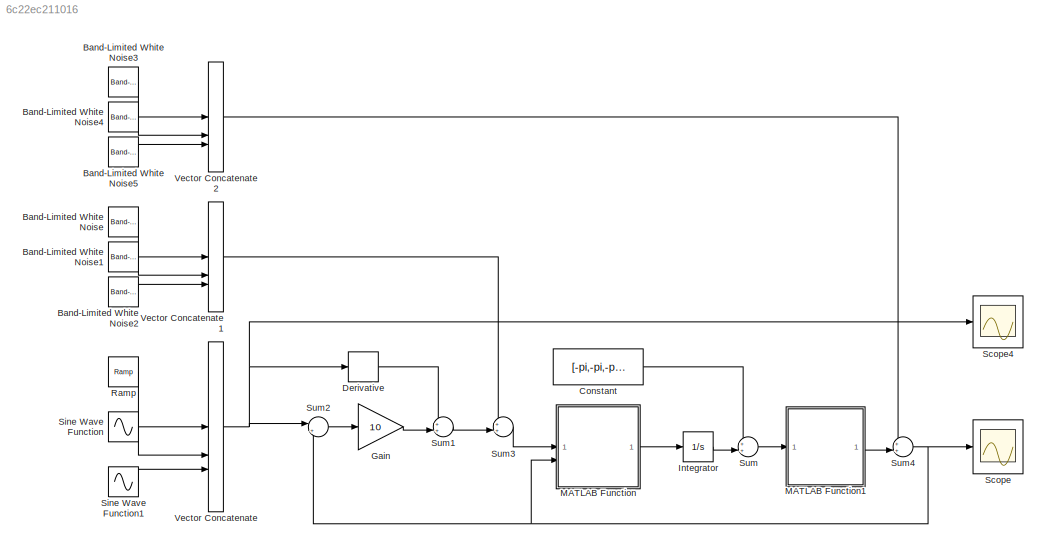
MODEL slx_6c22ec211016
KIND model
CONFIG AbsTol = auto
CONFIG EnableMultiTasking = off
CONFIG FixedStep = auto
CONFIG MaxStep = auto
CONFIG MinStep = auto
CONFIG RelTol = 1e-3
CONFIG SampleTimeConstraint = Unconstrained
CONFIG SolverName = VariableStepAuto
CONFIG StartTime = 0.0
CONFIG StopTime = 3
BLOCK [Reference] Band-Limited White Noise  REF=simulink/Sources/Band-Limited
White Noise
  SourceBlock = simulink/Sources/Band-Limited\nWhite Noise
  SourceType = Band-Limited White Noise.
BLOCK [Reference] Band-Limited White Noise1  REF=simulink/Sources/Band-Limited
White Noise
  SourceBlock = simulink/Sources/Band-Limited\nWhite Noise
  SourceType = Band-Limited White Noise.
BLOCK [Reference] Band-Limited White Noise2  REF=simulink/Sources/Band-Limited
White Noise
  SourceBlock = simulink/Sources/Band-Limited\nWhite Noise
  SourceType = Band-Limited White Noise.
BLOCK [Reference] Band-Limited White Noise3  REF=simulink/Sources/Band-Limited
White Noise
  SourceBlock = simulink/Sources/Band-Limited\nWhite Noise
  SourceType = Band-Limited White Noise.
BLOCK [Reference] Band-Limited White Noise4  REF=simulink/Sources/Band-Limited
White Noise
  SourceBlock = simulink/Sources/Band-Limited\nWhite Noise
  SourceType = Band-Limited White Noise.
BLOCK [Reference] Band-Limited White Noise5  REF=simulink/Sources/Band-Limited
White Noise
  SourceBlock = simulink/Sources/Band-Limited\nWhite Noise
  SourceType = Band-Limited White Noise.
BLOCK [Constant] Constant
  Value = [-pi,-pi,-pi]
BLOCK [Derivative] Derivative
BLOCK [Gain] Gain
  Gain = 10
BLOCK [Integrator] Integrator
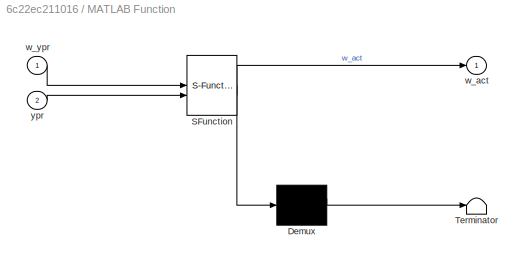
BLOCK [SubSystem] MATLAB Function
  ErrorFcn = Stateflow.Translate.translate
  PermitHierarchicalResolution = ExplicitOnly
  SFBlockType = MATLAB Function
  TreatAsAtomicUnit = on
BLOCK [Demux] MATLAB Function/ Demux 
  Outputs = 1
BLOCK [S-Function] MATLAB Function/ SFunction 
  EnableBusSupport = on
  FunctionName = sf_sfun
  PortCounts = [2 2]
  SFcnIsStateOwnerBlock = off
  SFunctionDeploymentMode = off
  Tag = Stateflow S-Function 2
BLOCK [Terminator] MATLAB Function/ Terminator 
BLOCK [Outport] MATLAB Function/w_act
BLOCK [Inport] MATLAB Function/w_ypr
BLOCK [Inport] MATLAB Function/ypr
  Port = 2
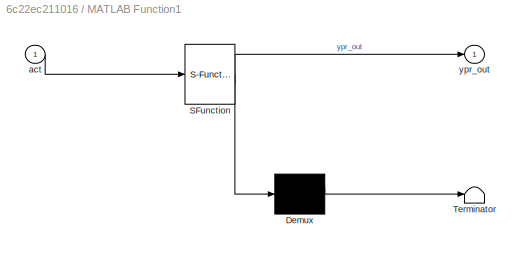
BLOCK [SubSystem] MATLAB Function1
  ErrorFcn = Stateflow.Translate.translate
  PermitHierarchicalResolution = ExplicitOnly
  SFBlockType = MATLAB Function
  TreatAsAtomicUnit = on
BLOCK [Demux] MATLAB Function1/ Demux 
  Outputs = 1
BLOCK [S-Function] MATLAB Function1/ SFunction 
  EnableBusSupport = on
  FunctionName = sf_sfun
  PortCounts = [1 2]
  SFcnIsStateOwnerBlock = off
  SFunctionDeploymentMode = off
  Tag = Stateflow S-Function 1
BLOCK [Terminator] MATLAB Function1/ Terminator 
BLOCK [Inport] MATLAB Function1/act
BLOCK [Outport] MATLAB Function1/ypr_out
BLOCK [Reference] Ramp  REF=simulink/Sources/Ramp
  SourceBlock = simulink/Sources/Ramp
  SourceType = Ramp
BLOCK [Scope] Scope
  Floating = off
  NumInputPorts = 1
  ScopeSpecificationString = Simulink.scopes.TimeScopeBlockCfg('CurrentConfiguration', extmgr.ConfigurationSet(extmgr.Configuration('Core','General UI',true),extmgr.Configuration('Core','Source UI',true),extmgr.Configuration('Sources','WiredSimulink',true),extmgr.Configuration('Visuals','Time Domain',true,'SerializedDisplays',{struct('MinYLimReal','-3.82379','MaxYLimReal','0.85343','YLabelReal','','MinYLimMag','0.00000','MaxY...<+1777ch>
BLOCK [Scope] Scope4
  Floating = off
  NumInputPorts = 1
  ScopeSpecificationString = Simulink.scopes.TimeScopeBlockCfg('CurrentConfiguration', extmgr.ConfigurationSet(extmgr.Configuration('Core','General UI',true),extmgr.Configuration('Core','Source UI',true),extmgr.Configuration('Sources','WiredSimulink',true,'DataLoggingVariableName','ScopeData3'),extmgr.Configuration('Visuals','Time Domain',true,'SerializedDisplays',{struct('MinYLimReal','-3.56554','MaxYLimReal','0.67394','YLab...<+1804ch>
BLOCK [Sin] Sine Wave Function
  Amplitude = 0.25
  Frequency = 2
  SampleTime = 0
BLOCK [Sin] Sine Wave Function1
  Amplitude = -0.25
  Frequency = 2
  SampleTime = 0
BLOCK [Sum] Sum
  Inputs = ++|
BLOCK [Sum] Sum1
  Inputs = ++|
BLOCK [Sum] Sum2
  Inputs = |+-
BLOCK [Sum] Sum3
  Inputs = ++|
BLOCK [Sum] Sum4
  Inputs = ++|
BLOCK [Concatenate] Vector Concatenate
  NumInputs = 3
BLOCK [Concatenate] Vector Concatenate1
  NumInputs = 3
BLOCK [Concatenate] Vector Concatenate2
  NumInputs = 3
LINE Band-Limited White Noise1:1 -> Vector Concatenate1:2
LINE Band-Limited White Noise2:1 -> Vector Concatenate1:3
LINE Band-Limited White Noise3:1 -> Vector Concatenate2:1
LINE Band-Limited White Noise4:1 -> Vector Concatenate2:2
LINE Band-Limited White Noise5:1 -> Vector Concatenate2:3
LINE Band-Limited White Noise:1 -> Vector Concatenate1:1
LINE Constant:1 -> Sum:1
LINE Derivative:1 -> Sum1:1
LINE Gain:1 -> Sum1:2
LINE Integrator:1 -> Sum:2
LINE MATLAB Function1:1 -> Sum4:2
LINE MATLAB Function:1 -> Integrator:1
LINE Ramp:1 -> Vector Concatenate:1
LINE Sine Wave Function1:1 -> Vector Concatenate:3
LINE Sine Wave Function:1 -> Vector Concatenate:2
LINE Sum1:1 -> Sum3:2
LINE Sum2:1 -> Gain:1
LINE Sum3:1 -> MATLAB Function:1
NET Sum4:1 -> MATLAB Function:2, Scope:1, Sum2:2
LINE Sum:1 -> MATLAB Function1:1
LINE Vector Concatenate1:1 -> Sum3:1
LINE Vector Concatenate2:1 -> Sum4:1
NET Vector Concatenate:1 -> Derivative:1, Scope4:1, Sum2:1
note: NET lines group one-source signal fan-out (src -> all destinations, sorted); 1:1 wires keep LINE
CHART MATLAB Function states=1 transitions=1
  STATE_LABEL 'eML_blk_kernel()'
  STATE_LABEL 'SCRIPT:\nfunction w_act = ivk(w_ypr, ypr)\n    a1 = pi/4; % alpha 1\n    a2 = pi/2; % alpha 2\n    b = pi/2; % beta\n    \n    spm = coax_spm(a1,a2,b);\n    w_act = solve_ivk(spm, ypr, w_ypr);\nend'
CHART MATLAB Function1 states=1 transitions=1
  STATE_LABEL 'eML_blk_kernel()'
  STATE_LABEL "SCRIPT:\nfunction ypr_out = fpk(act)\n    a1 = pi/4; % alpha 1\n    a2 = pi/2; % alpha 2\n    b = pi/2; % beta\n    \n    spm = coax_spm(a1,a2,b);\n    input_angles = act + spm.actuator_origin;\n    ypr_out = solve_fpk(spm, input_angles.').';\nend"
CHART  states=0 transitions=0
CHART  states=0 transitions=0
